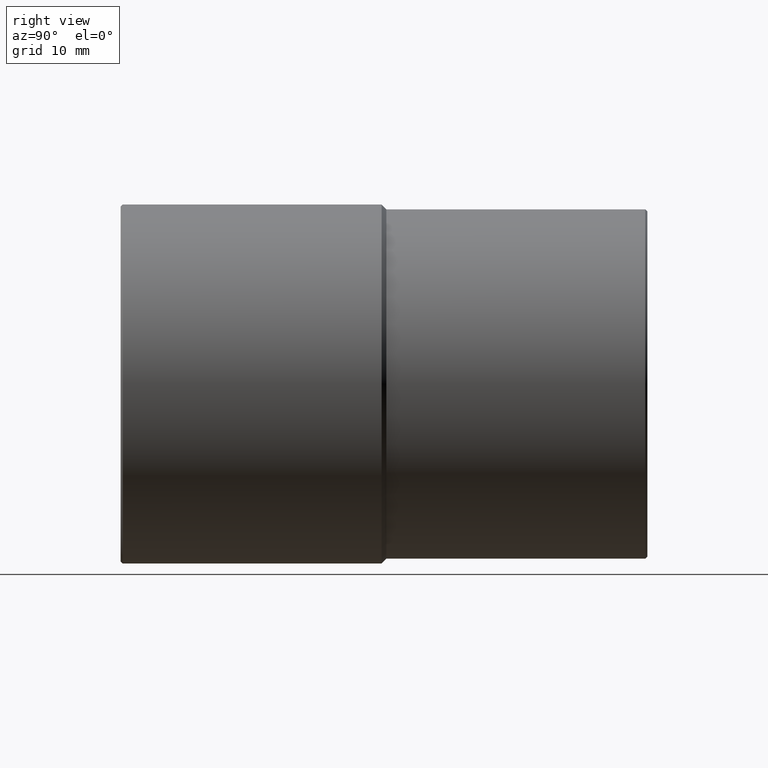
[diagram: clean part render]
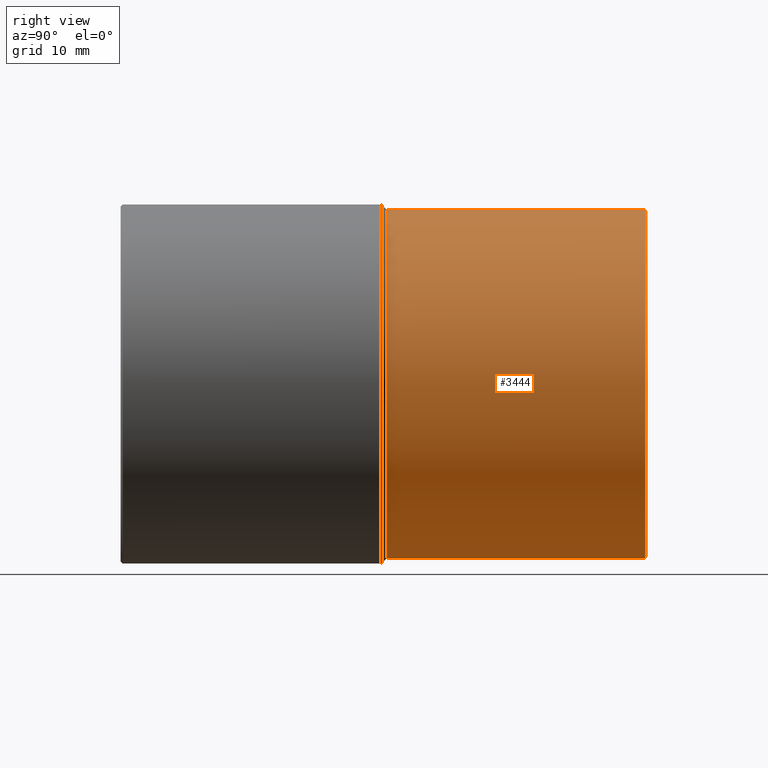
[diagram: same view with one face highlighted and labeled with its STEP entity id]
A machine part, right view. The second image highlights one B-rep face of the part: STEP entity #3444.
In plain terms, the highlighted cylindrical surface (partial cylindrical patch) has radius 21.55 mm, axis along (-0, -1, -0).
Its self-contained STEP definition (entity closure, byte-faithful):
#28 = DIRECTION ( 'NONE',  ( 0.0000000000000000000, -1.000000000000000000, 0.0000000000000000000 ) ) ;
#555 = ORIENTED_EDGE ( 'NONE', *, *, #3573, .F. ) ;
#756 = CARTESIAN_POINT ( 'NONE',  ( 2.639113852162545900E-015, 32.50000000000000000, 21.54999999999999700 ) ) ;
#979 = CARTESIAN_POINT ( 'NONE',  ( 0.0000000000000000000, 32.25000000000001400, 0.0000000000000000000 ) ) ;
#1087 = CARTESIAN_POINT ( 'NONE',  ( 0.0000000000000000000, 32.50000000000000000, -21.54999999999999700 ) ) ;
#1099 = VECTOR ( 'NONE', #6083, 1000.000000000000000 ) ;
#1146 = CARTESIAN_POINT ( 'NONE',  ( 0.0000000000000000000, 0.2999999999999947200, 0.0000000000000000000 ) ) ;
#1195 = AXIS2_PLACEMENT_3D ( 'NONE', #1146, #7004, #1984 ) ;
#1206 = EDGE_CURVE ( 'NONE', #10001, #10717, #7742, .T. ) ;
#1357 = LINE ( 'NONE', #1087, #1099 ) ;
#1984 = DIRECTION ( 'NONE',  ( 0.0000000000000000000, 0.0000000000000000000, 1.000000000000000000 ) ) ;
#2141 = VECTOR ( 'NONE', #5756, 1000.000000000000000 ) ;
#2380 = CARTESIAN_POINT ( 'NONE',  ( 0.0000000000000000000, 32.25000000000001400, -21.54999999999999700 ) ) ;
#2439 = EDGE_LOOP ( 'NONE', ( #5298, #8773, #9860, #555 ) ) ;
#3302 = EDGE_CURVE ( 'NONE', #10717, #3548, #7125, .T. ) ;
#3444 = ADVANCED_FACE ( 'NONE', ( #10473 ), #3842, .T. ) ;
#3548 = VERTEX_POINT ( 'NONE', #6007 ) ;
#3573 = EDGE_CURVE ( 'NONE', #10001, #10078, #1357, .T. ) ;
#3842 = CYLINDRICAL_SURFACE ( 'NONE', #8350, 21.54999999999999700 ) ;
#4188 = DIRECTION ( 'NONE',  ( 0.0000000000000000000, 0.0000000000000000000, -1.000000000000000000 ) ) ;
#4228 = DIRECTION ( 'NONE',  ( -0.0000000000000000000, -1.000000000000000000, -0.0000000000000000000 ) ) ;
#5020 = CARTESIAN_POINT ( 'NONE',  ( 0.0000000000000000000, 0.2999999999999947200, -21.54999999999999700 ) ) ;
#5298 = ORIENTED_EDGE ( 'NONE', *, *, #1206, .T. ) ;
#5756 = DIRECTION ( 'NONE',  ( -0.0000000000000000000, -1.000000000000000000, -0.0000000000000000000 ) ) ;
#6007 = CARTESIAN_POINT ( 'NONE',  ( 2.639113852162545900E-015, 0.2999999999999947200, 21.54999999999999700 ) ) ;
#6083 = DIRECTION ( 'NONE',  ( -0.0000000000000000000, -1.000000000000000000, -0.0000000000000000000 ) ) ;
#6598 = AXIS2_PLACEMENT_3D ( 'NONE', #979, #28, #9320 ) ;
#6951 = CIRCLE ( 'NONE', #1195, 21.54999999999999700 ) ;
#7004 = DIRECTION ( 'NONE',  ( -0.0000000000000000000, 1.000000000000000000, -0.0000000000000000000 ) ) ;
#7125 = LINE ( 'NONE', #756, #2141 ) ;
#7300 = EDGE_CURVE ( 'NONE', #3548, #10078, #6951, .T. ) ;
#7742 = CIRCLE ( 'NONE', #6598, 21.54999999999999700 ) ;
#7815 = CARTESIAN_POINT ( 'NONE',  ( 2.639113852162545900E-015, 32.25000000000001400, 21.54999999999999700 ) ) ;
#8350 = AXIS2_PLACEMENT_3D ( 'NONE', #10008, #4228, #4188 ) ;
#8773 = ORIENTED_EDGE ( 'NONE', *, *, #3302, .T. ) ;
#9320 = DIRECTION ( 'NONE',  ( 0.0000000000000000000, 0.0000000000000000000, 1.000000000000000000 ) ) ;
#9860 = ORIENTED_EDGE ( 'NONE', *, *, #7300, .T. ) ;
#10001 = VERTEX_POINT ( 'NONE', #2380 ) ;
#10008 = CARTESIAN_POINT ( 'NONE',  ( 0.0000000000000000000, 32.50000000000000000, 0.0000000000000000000 ) ) ;
#10078 = VERTEX_POINT ( 'NONE', #5020 ) ;
#10473 = FACE_OUTER_BOUND ( 'NONE', #2439, .T. ) ;
#10717 = VERTEX_POINT ( 'NONE', #7815 ) ;